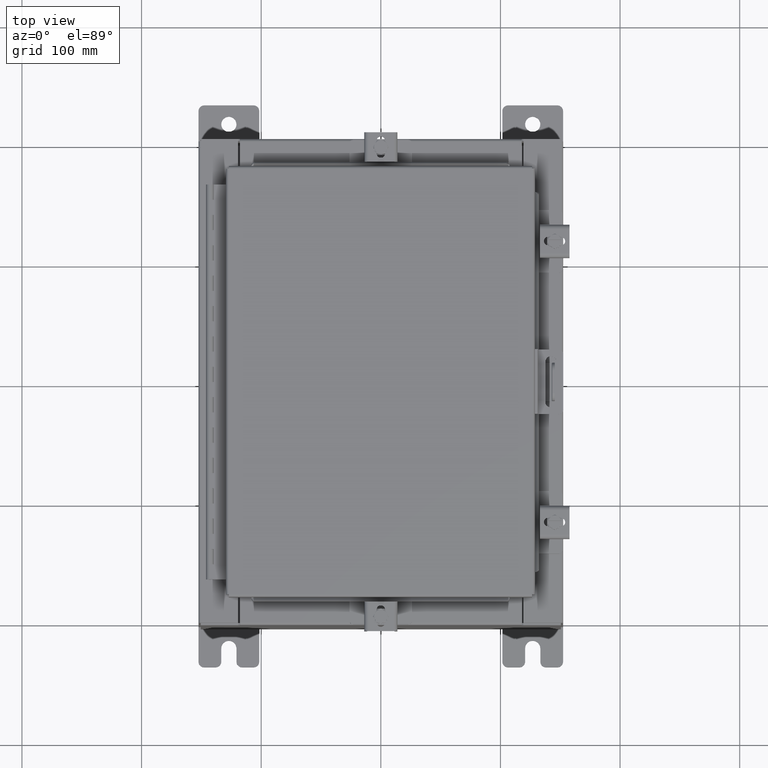
[diagram: clean part render]
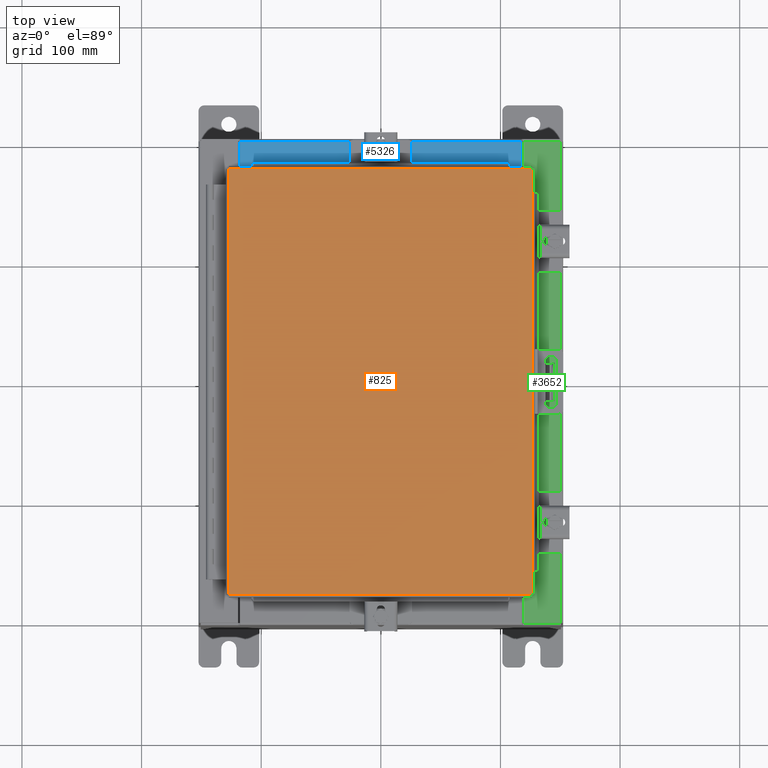
[diagram: same view with three faces highlighted in distinct colors, each labeled with its STEP entity id]
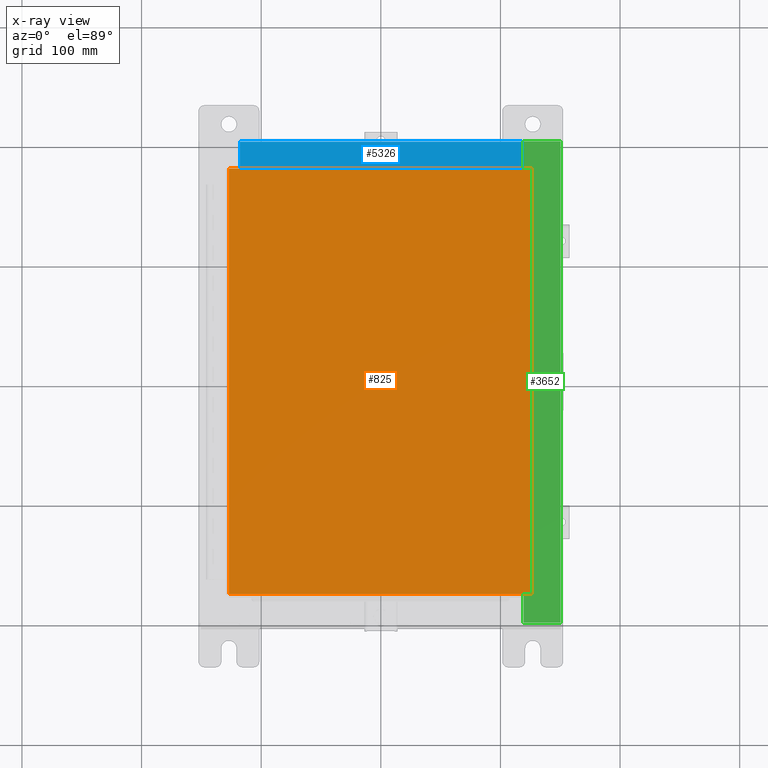
[diagram: x-ray of the same camera — body ghosted, the three highlighted faces saturated]
A machine part, top view with three faces highlighted in distinct colors.
The next image is the same camera in x-ray (body ghosted, the three faces saturated) — at least one of them is partly hidden behind the body in this view.
Their STEP definitions:

[orange] entity #825 — the highlighted planar face has unit normal (0, 0, -1).
#147 = CARTESIAN_POINT ( 'NONE',  ( 4.990299999999998600, -7.006300000000000400, 3.414809992080329000E-016 ) ) ;
#825 = ADVANCED_FACE ( 'NONE', ( #8340 ), #2411, .F. ) ;
#2411 = PLANE ( 'NONE',  #22971 ) ;
#3298 = VECTOR ( 'NONE', #10825, 39.37007874015748100 ) ;
#5516 = VECTOR ( 'NONE', #14955, 39.37007874015748100 ) ;
#5522 = VERTEX_POINT ( 'NONE', #16359 ) ;
#6686 = DIRECTION ( 'NONE',  ( 0.0000000000000000000, 1.000000000000000000, 0.0000000000000000000 ) ) ;
#6928 = CARTESIAN_POINT ( 'NONE',  ( -4.990300000000000400, 7.006300000000000400, -2.048885995248197400E-016 ) ) ;
#8010 = VECTOR ( 'NONE', #20989, 39.37007874015748100 ) ;
#8215 = EDGE_CURVE ( 'NONE', #5522, #25947, #10849, .T. ) ;
#8340 = FACE_OUTER_BOUND ( 'NONE', #23816, .T. ) ;
#8627 = LINE ( 'NONE', #6928, #8010 ) ;
#10825 = DIRECTION ( 'NONE',  ( 1.000000000000000000, -0.0000000000000000000, -0.0000000000000000000 ) ) ;
#10849 = LINE ( 'NONE', #18906, #5516 ) ;
#11683 = DIRECTION ( 'NONE',  ( -1.000000000000000000, 0.0000000000000000000, -0.0000000000000000000 ) ) ;
#12635 = VERTEX_POINT ( 'NONE', #147 ) ;
#12834 = CARTESIAN_POINT ( 'NONE',  ( -4.990300000000000400, -7.006300000000000400, -2.048885995248197400E-016 ) ) ;
#13252 = CARTESIAN_POINT ( 'NONE',  ( -4.990300000000000400, -7.006300000000000400, -2.048885995248197400E-016 ) ) ;
#13309 = VECTOR ( 'NONE', #6686, 39.37007874015748100 ) ;
#13764 = ORIENTED_EDGE ( 'NONE', *, *, #20081, .T. ) ;
#13938 = LINE ( 'NONE', #20662, #13309 ) ;
#14593 = LINE ( 'NONE', #12834, #3298 ) ;
#14955 = DIRECTION ( 'NONE',  ( -1.000000000000000000, -0.0000000000000000000, -0.0000000000000000000 ) ) ;
#15951 = DIRECTION ( 'NONE',  ( 0.0000000000000000000, 0.0000000000000000000, -1.000000000000000000 ) ) ;
#16359 = CARTESIAN_POINT ( 'NONE',  ( 4.990299999999998600, 7.006300000000000400, -2.048885995248197400E-016 ) ) ;
#18906 = CARTESIAN_POINT ( 'NONE',  ( 4.990299999999998600, 7.006300000000000400, -2.048885995248197400E-016 ) ) ;
#19393 = ORIENTED_EDGE ( 'NONE', *, *, #8215, .T. ) ;
#20081 = EDGE_CURVE ( 'NONE', #22635, #12635, #14593, .T. ) ;
#20662 = CARTESIAN_POINT ( 'NONE',  ( 4.990299999999998600, -7.006300000000000400, 3.414809992080329000E-016 ) ) ;
#20989 = DIRECTION ( 'NONE',  ( 0.0000000000000000000, -1.000000000000000000, 0.0000000000000000000 ) ) ;
#21616 = ORIENTED_EDGE ( 'NONE', *, *, #24864, .T. ) ;
#22333 = CARTESIAN_POINT ( 'NONE',  ( -4.990300000000000400, 7.006300000000000400, -2.048885995248197400E-016 ) ) ;
#22635 = VERTEX_POINT ( 'NONE', #13252 ) ;
#22971 = AXIS2_PLACEMENT_3D ( 'NONE', #26013, #15951, #11683 ) ;
#23816 = EDGE_LOOP ( 'NONE', ( #13764, #23928, #19393, #21616 ) ) ;
#23928 = ORIENTED_EDGE ( 'NONE', *, *, #26069, .T. ) ;
#24864 = EDGE_CURVE ( 'NONE', #25947, #22635, #8627, .T. ) ;
#25947 = VERTEX_POINT ( 'NONE', #22333 ) ;
#26013 = CARTESIAN_POINT ( 'NONE',  ( 0.0000000000000000000, 0.0000000000000000000, 0.0000000000000000000 ) ) ;
#26069 = EDGE_CURVE ( 'NONE', #12635, #5522, #13938, .T. ) ;

[blue] entity #5326 — the highlighted planar face has unit normal (0, 0, 1).
#765 = VERTEX_POINT ( 'NONE', #13674 ) ;
#811 = CARTESIAN_POINT ( 'NONE',  ( -4.637199999999998200, -0.07469999999999973900, 3.999999999999999600 ) ) ;
#928 = LINE ( 'NONE', #3923, #10356 ) ;
#3854 = CARTESIAN_POINT ( 'NONE',  ( 0.0000000000000000000, 1.425992975200418200E-014, 3.999999999999999600 ) ) ;
#3923 = CARTESIAN_POINT ( 'NONE',  ( 4.637200000000002700, -1.287299999999999900, 4.000000000000003600 ) ) ;
#4297 = VECTOR ( 'NONE', #13515, 39.37007874015748100 ) ;
#4422 = EDGE_CURVE ( 'NONE', #765, #11011, #16676, .T. ) ;
#5326 = ADVANCED_FACE ( 'NONE', ( #20406 ), #7882, .T. ) ;
#7276 = EDGE_CURVE ( 'NONE', #13138, #18824, #20303, .T. ) ;
#7278 = VECTOR ( 'NONE', #14832, 39.37007874015748100 ) ;
#7697 = CARTESIAN_POINT ( 'NONE',  ( 4.637200000000002700, -0.08769999999999993100, 3.999999999999999600 ) ) ;
#7882 = PLANE ( 'NONE',  #14873 ) ;
#8397 = EDGE_LOOP ( 'NONE', ( #15493, #20726, #11046, #14648 ) ) ;
#9907 = DIRECTION ( 'NONE',  ( 0.0000000000000000000, -1.000000000000000000, 3.566381192773190000E-015 ) ) ;
#10225 = VECTOR ( 'NONE', #10557, 39.37007874015748100 ) ;
#10356 = VECTOR ( 'NONE', #19972, 39.37007874015748100 ) ;
#10557 = DIRECTION ( 'NONE',  ( -1.000000000000000000, 0.0000000000000000000, 0.0000000000000000000 ) ) ;
#11011 = VERTEX_POINT ( 'NONE', #13223 ) ;
#11046 = ORIENTED_EDGE ( 'NONE', *, *, #7276, .F. ) ;
#12552 = CARTESIAN_POINT ( 'NONE',  ( 0.0000000000000000000, -0.08770000000000026400, 4.000000000000000000 ) ) ;
#13138 = VERTEX_POINT ( 'NONE', #7697 ) ;
#13223 = CARTESIAN_POINT ( 'NONE',  ( -4.637199999999998200, -0.08770000000000026400, 3.999999999999999600 ) ) ;
#13515 = DIRECTION ( 'NONE',  ( -0.0000000000000000000, -1.000000000000000000, 3.566381192773190000E-015 ) ) ;
#13674 = CARTESIAN_POINT ( 'NONE',  ( -4.637199999999998200, -1.287299999999999200, 4.000000000000003600 ) ) ;
#14436 = EDGE_CURVE ( 'NONE', #13138, #11011, #20902, .T. ) ;
#14648 = ORIENTED_EDGE ( 'NONE', *, *, #14436, .T. ) ;
#14832 = DIRECTION ( 'NONE',  ( -0.0000000000000000000, 1.000000000000000000, -3.566381192773190000E-015 ) ) ;
#14873 = AXIS2_PLACEMENT_3D ( 'NONE', #3854, #21928, #9907 ) ;
#15493 = ORIENTED_EDGE ( 'NONE', *, *, #4422, .F. ) ;
#16676 = LINE ( 'NONE', #811, #7278 ) ;
#18824 = VERTEX_POINT ( 'NONE', #20351 ) ;
#19972 = DIRECTION ( 'NONE',  ( -1.000000000000000000, 0.0000000000000000000, 0.0000000000000000000 ) ) ;
#20303 = LINE ( 'NONE', #25504, #4297 ) ;
#20351 = CARTESIAN_POINT ( 'NONE',  ( 4.637200000000002700, -1.287299999999999900, 4.000000000000003600 ) ) ;
#20406 = FACE_OUTER_BOUND ( 'NONE', #8397, .T. ) ;
#20726 = ORIENTED_EDGE ( 'NONE', *, *, #23520, .F. ) ;
#20902 = LINE ( 'NONE', #12552, #10225 ) ;
#21928 = DIRECTION ( 'NONE',  ( 0.0000000000000000000, 3.566381192773190000E-015, 1.000000000000000000 ) ) ;
#23520 = EDGE_CURVE ( 'NONE', #18824, #765, #928, .T. ) ;
#25504 = CARTESIAN_POINT ( 'NONE',  ( 4.637200000000002700, -1.300299999999999800, 4.000000000000003600 ) ) ;

[green] entity #3652 — the highlighted planar face has unit normal (-0, -0, -1).
#31 = EDGE_CURVE ( 'NONE', #24192, #5498, #14655, .T. ) ;
#56 = CARTESIAN_POINT ( 'NONE',  ( 4.699700000000026600, -6.631100000000002700, 7.925300000000007100 ) ) ;
#74 = CARTESIAN_POINT ( 'NONE',  ( 4.750050000000027400, -6.593750000000002700, 7.925300000000007100 ) ) ;
#254 = DIRECTION ( 'NONE',  ( -1.000000000000000000, 0.0000000000000000000, 6.241167087353082300E-015 ) ) ;
#316 = CARTESIAN_POINT ( 'NONE',  ( 4.699700000000026600, 7.925300000000000900, 7.925300000000007100 ) ) ;
#703 = DIRECTION ( 'NONE',  ( -1.000000000000000000, 0.0000000000000000000, 0.0000000000000000000 ) ) ;
#708 = CARTESIAN_POINT ( 'NONE',  ( 4.699700000000026600, -6.631100000000002700, 7.925300000000008900 ) ) ;
#861 = CARTESIAN_POINT ( 'NONE',  ( 4.750050000000027400, -6.631100000000002700, 7.925300000000007100 ) ) ;
#1164 = DIRECTION ( 'NONE',  ( 6.241167087353081500E-015, 6.893992640440773200E-017, 1.000000000000000000 ) ) ;
#1285 = DIRECTION ( 'NONE',  ( -1.000000000000000000, 0.0000000000000000000, 0.0000000000000000000 ) ) ;
#1380 = VECTOR ( 'NONE', #8563, 39.37007874015748100 ) ;
#1783 = CARTESIAN_POINT ( 'NONE',  ( 5.912300000000026800, -7.925300000000000900, 7.925300000000000900 ) ) ;
#1969 = CARTESIAN_POINT ( 'NONE',  ( 4.750050000000027400, 6.612425000000000000, 7.925300000000008900 ) ) ;
#2370 = VERTEX_POINT ( 'NONE', #56 ) ;
#2502 = CARTESIAN_POINT ( 'NONE',  ( 4.699700000000026600, 5.463695987328531400E-016, 7.925300000000007100 ) ) ;
#2700 = CIRCLE ( 'NONE', #15196, 0.01867500000000003900 ) ;
#2883 = LINE ( 'NONE', #1783, #12938 ) ;
#3091 = CARTESIAN_POINT ( 'NONE',  ( 4.712700000000027400, 6.593750000000000000, 7.925300000000008900 ) ) ;
#3652 = ADVANCED_FACE ( 'NONE', ( #7273 ), #8161, .F. ) ;
#3906 = DIRECTION ( 'NONE',  ( -6.893992640440775600E-017, -1.000000000000000000, 6.893992640440816300E-017 ) ) ;
#4016 = DIRECTION ( 'NONE',  ( 1.000000000000000000, 0.0000000000000000000, 0.0000000000000000000 ) ) ;
#4980 = ORIENTED_EDGE ( 'NONE', *, *, #25402, .T. ) ;
#5068 = LINE ( 'NONE', #708, #25832 ) ;
#5498 = VERTEX_POINT ( 'NONE', #316 ) ;
#5583 = EDGE_LOOP ( 'NONE', ( #11960, #4980, #17973, #7063, #21313, #22954, #14317, #23997, #15224, #11296, #24390, #25640 ) ) ;
#5620 = EDGE_CURVE ( 'NONE', #5498, #22540, #19460, .T. ) ;
#5900 = VECTOR ( 'NONE', #21073, 39.37007874015748100 ) ;
#6102 = CARTESIAN_POINT ( 'NONE',  ( 4.972393517341118400E-014, 7.925300000000000900, 7.925300000000037300 ) ) ;
#6110 = VERTEX_POINT ( 'NONE', #12974 ) ;
#6711 = LINE ( 'NONE', #2502, #1380 ) ;
#6754 = LINE ( 'NONE', #11189, #12101 ) ;
#7020 = CARTESIAN_POINT ( 'NONE',  ( 4.712700000000027400, -6.593750000000002700, 7.925300000000008900 ) ) ;
#7055 = CARTESIAN_POINT ( 'NONE',  ( 5.912300000000027600, -7.925300000000000900, 7.925300000000000900 ) ) ;
#7063 = ORIENTED_EDGE ( 'NONE', *, *, #16478, .F. ) ;
#7108 = EDGE_CURVE ( 'NONE', #19973, #22540, #12770, .T. ) ;
#7127 = AXIS2_PLACEMENT_3D ( 'NONE', #12197, #10279, #24349 ) ;
#7136 = DIRECTION ( 'NONE',  ( 1.000000000000000000, 0.0000000000000000000, -6.241167087353082300E-015 ) ) ;
#7273 = FACE_OUTER_BOUND ( 'NONE', #5583, .T. ) ;
#7388 = VERTEX_POINT ( 'NONE', #74 ) ;
#8147 = VECTOR ( 'NONE', #9411, 39.37007874015748100 ) ;
#8161 = PLANE ( 'NONE',  #7127 ) ;
#8563 = DIRECTION ( 'NONE',  ( 0.0000000000000000000, -1.000000000000000000, 6.893992640440773200E-017 ) ) ;
#8638 = EDGE_CURVE ( 'NONE', #6110, #19973, #22766, .T. ) ;
#8830 = EDGE_CURVE ( 'NONE', #24492, #6110, #14885, .T. ) ;
#8939 = VECTOR ( 'NONE', #12583, 39.37007874015748100 ) ;
#9411 = DIRECTION ( 'NONE',  ( 0.0000000000000000000, -1.000000000000000000, 6.893992640440773200E-017 ) ) ;
#10279 = DIRECTION ( 'NONE',  ( -6.241167087353080700E-015, -6.893992640440773200E-017, -1.000000000000000000 ) ) ;
#11155 = CARTESIAN_POINT ( 'NONE',  ( 4.699700000000026600, -7.925300000000000900, 7.925300000000008900 ) ) ;
#11189 = CARTESIAN_POINT ( 'NONE',  ( 4.972393517341118400E-014, -7.925300000000000900, 7.925300000000038200 ) ) ;
#11296 = ORIENTED_EDGE ( 'NONE', *, *, #17343, .F. ) ;
#11960 = ORIENTED_EDGE ( 'NONE', *, *, #22473, .F. ) ;
#12101 = VECTOR ( 'NONE', #7136, 39.37007874015748100 ) ;
#12197 = CARTESIAN_POINT ( 'NONE',  ( 4.972393517341118400E-014, 5.463695987328552100E-016, 7.925300000000037300 ) ) ;
#12583 = DIRECTION ( 'NONE',  ( 1.000000000000000000, 0.0000000000000000000, 0.0000000000000000000 ) ) ;
#12721 = CARTESIAN_POINT ( 'NONE',  ( 4.750050000000027400, 6.631100000000000000, 7.925300000000008900 ) ) ;
#12770 = LINE ( 'NONE', #12721, #18745 ) ;
#12938 = VECTOR ( 'NONE', #3906, 39.37007874015748100 ) ;
#12974 = CARTESIAN_POINT ( 'NONE',  ( 4.750050000000027400, 6.593749999999999100, 7.925300000000006200 ) ) ;
#13179 = CARTESIAN_POINT ( 'NONE',  ( 4.750050000000027400, -6.612425000000001800, 7.925300000000008900 ) ) ;
#13602 = EDGE_CURVE ( 'NONE', #20863, #23895, #6754, .T. ) ;
#14317 = ORIENTED_EDGE ( 'NONE', *, *, #7108, .F. ) ;
#14655 = LINE ( 'NONE', #6102, #24134 ) ;
#14885 = LINE ( 'NONE', #24655, #8939 ) ;
#15148 = VERTEX_POINT ( 'NONE', #20701 ) ;
#15196 = AXIS2_PLACEMENT_3D ( 'NONE', #13179, #1164, #15199 ) ;
#15199 = DIRECTION ( 'NONE',  ( 1.000000000000000000, 0.0000000000000000000, 0.0000000000000000000 ) ) ;
#15224 = ORIENTED_EDGE ( 'NONE', *, *, #8830, .F. ) ;
#15315 = CARTESIAN_POINT ( 'NONE',  ( 4.750050000000027400, -6.593750000000002700, 7.925300000000008900 ) ) ;
#16016 = DIRECTION ( 'NONE',  ( 6.241167087353081500E-015, 6.893992640440773200E-017, 1.000000000000000000 ) ) ;
#16478 = EDGE_CURVE ( 'NONE', #24192, #23895, #2883, .T. ) ;
#17343 = EDGE_CURVE ( 'NONE', #15148, #24492, #21933, .T. ) ;
#17973 = ORIENTED_EDGE ( 'NONE', *, *, #13602, .T. ) ;
#18422 = EDGE_CURVE ( 'NONE', #23187, #7388, #2700, .T. ) ;
#18460 = CARTESIAN_POINT ( 'NONE',  ( 5.912300000000027600, 7.925300000000000900, 7.925300000000000000 ) ) ;
#18745 = VECTOR ( 'NONE', #703, 39.37007874015748100 ) ;
#19421 = CARTESIAN_POINT ( 'NONE',  ( 4.699700000000026600, 5.463695987328531400E-016, 7.925300000000007100 ) ) ;
#19460 = LINE ( 'NONE', #19421, #8147 ) ;
#19973 = VERTEX_POINT ( 'NONE', #22416 ) ;
#20701 = CARTESIAN_POINT ( 'NONE',  ( 4.712700000000027400, -6.593750000000002700, 7.925300000000008900 ) ) ;
#20863 = VERTEX_POINT ( 'NONE', #11155 ) ;
#21073 = DIRECTION ( 'NONE',  ( -0.0000000000000000000, 1.000000000000000000, -0.0000000000000000000 ) ) ;
#21313 = ORIENTED_EDGE ( 'NONE', *, *, #31, .T. ) ;
#21933 = LINE ( 'NONE', #7020, #5900 ) ;
#22143 = VECTOR ( 'NONE', #1285, 39.37007874015748100 ) ;
#22416 = CARTESIAN_POINT ( 'NONE',  ( 4.750050000000027400, 6.631100000000000000, 7.925300000000007100 ) ) ;
#22473 = EDGE_CURVE ( 'NONE', #2370, #23187, #5068, .T. ) ;
#22540 = VERTEX_POINT ( 'NONE', #22939 ) ;
#22766 = CIRCLE ( 'NONE', #25938, 0.01867500000000003900 ) ;
#22772 = LINE ( 'NONE', #15315, #22143 ) ;
#22939 = CARTESIAN_POINT ( 'NONE',  ( 4.699700000000026600, 6.631099999999999100, 7.925300000000007100 ) ) ;
#22954 = ORIENTED_EDGE ( 'NONE', *, *, #5620, .T. ) ;
#23187 = VERTEX_POINT ( 'NONE', #861 ) ;
#23895 = VERTEX_POINT ( 'NONE', #7055 ) ;
#23997 = ORIENTED_EDGE ( 'NONE', *, *, #8638, .F. ) ;
#24134 = VECTOR ( 'NONE', #254, 39.37007874015748100 ) ;
#24192 = VERTEX_POINT ( 'NONE', #18460 ) ;
#24349 = DIRECTION ( 'NONE',  ( -1.000000000000000000, 0.0000000000000000000, 6.241167087353080700E-015 ) ) ;
#24390 = ORIENTED_EDGE ( 'NONE', *, *, #25654, .F. ) ;
#24492 = VERTEX_POINT ( 'NONE', #3091 ) ;
#24655 = CARTESIAN_POINT ( 'NONE',  ( 4.712700000000027400, 6.593750000000000000, 7.925300000000008900 ) ) ;
#24905 = DIRECTION ( 'NONE',  ( 1.000000000000000000, 0.0000000000000000000, 0.0000000000000000000 ) ) ;
#25402 = EDGE_CURVE ( 'NONE', #2370, #20863, #6711, .T. ) ;
#25640 = ORIENTED_EDGE ( 'NONE', *, *, #18422, .F. ) ;
#25654 = EDGE_CURVE ( 'NONE', #7388, #15148, #22772, .T. ) ;
#25832 = VECTOR ( 'NONE', #24905, 39.37007874015748100 ) ;
#25938 = AXIS2_PLACEMENT_3D ( 'NONE', #1969, #16016, #4016 ) ;